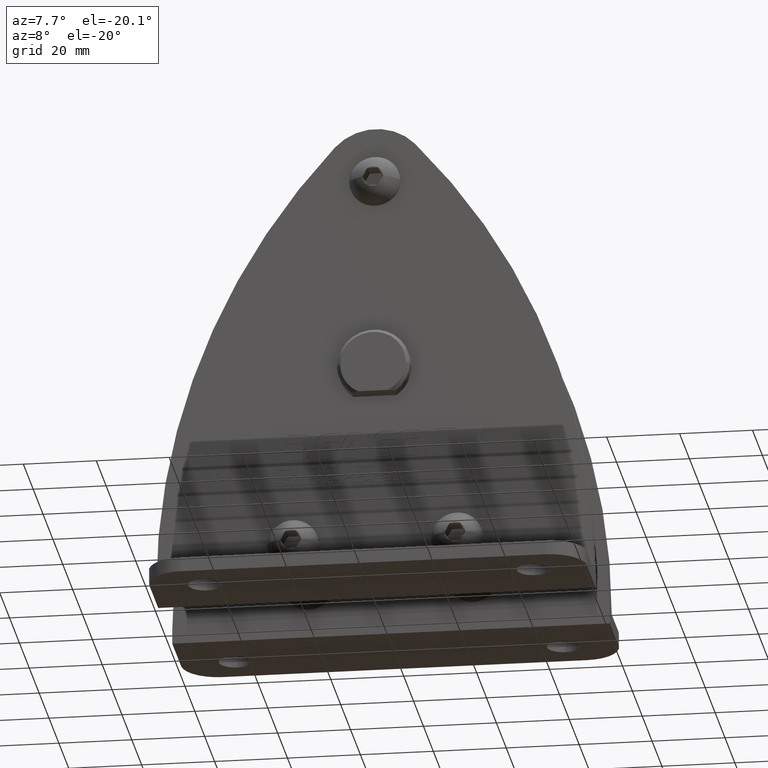
[diagram: clean part render]
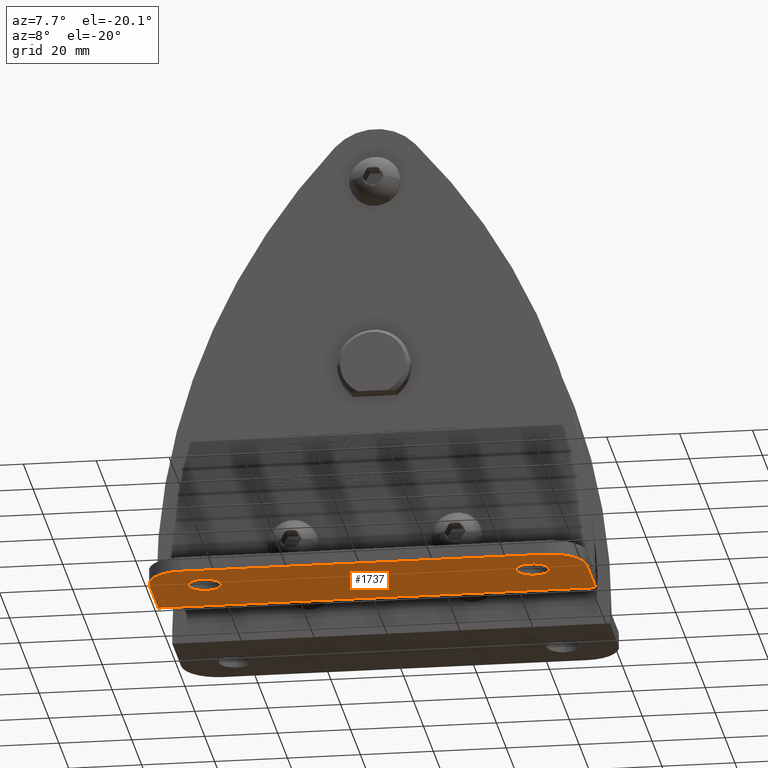
[diagram: same view with one face highlighted and labeled with its STEP entity id]
A machine part, auxiliary view. The second image highlights one B-rep face of the part: STEP entity #1737.
In plain terms, the highlighted planar face has unit normal (0, 0, -1).
Its self-contained STEP definition (entity closure, byte-faithful):
#1737=ADVANCED_FACE('',(#3653,#3654,#3655),#3656,.T.);
#3653=FACE_BOUND('',#5723,.T.);
#3654=FACE_BOUND('',#5724,.T.);
#3655=FACE_OUTER_BOUND('',#5725,.T.);
#3656=PLANE('',#5726);
#5723=EDGE_LOOP('',(#11239,#11240));
#5724=EDGE_LOOP('',(#11241,#11242));
#5725=EDGE_LOOP('',(#11243,#11244,#11245,#11246,#11247,#11248,#11249,#11250));
#5726=AXIS2_PLACEMENT_3D('',#11251,#11252,#11253);
#11239=ORIENTED_EDGE('',*,*,#14387,.T.);
#11240=ORIENTED_EDGE('',*,*,#12517,.T.);
#11241=ORIENTED_EDGE('',*,*,#14390,.T.);
#11242=ORIENTED_EDGE('',*,*,#12512,.T.);
#11243=ORIENTED_EDGE('',*,*,#14422,.T.);
#11244=ORIENTED_EDGE('',*,*,#14404,.T.);
#11245=ORIENTED_EDGE('',*,*,#14409,.F.);
#11246=ORIENTED_EDGE('',*,*,#14412,.T.);
#11247=ORIENTED_EDGE('',*,*,#14395,.F.);
#11248=ORIENTED_EDGE('',*,*,#14400,.T.);
#11249=ORIENTED_EDGE('',*,*,#14425,.F.);
#11250=ORIENTED_EDGE('',*,*,#14426,.T.);
#11251=CARTESIAN_POINT('',(0.0,-14.25,-65.0));
#11252=DIRECTION('',(0.0,0.0,-1.0));
#11253=DIRECTION('',(1.0,0.0,0.0));
#12512=EDGE_CURVE('',#15080,#15077,#15081,.T.);
#12517=EDGE_CURVE('',#15089,#15086,#15090,.T.);
#14387=EDGE_CURVE('',#15086,#15089,#17857,.T.);
#14390=EDGE_CURVE('',#15077,#15080,#17860,.T.);
#14395=EDGE_CURVE('',#17866,#17868,#17869,.T.);
#14400=EDGE_CURVE('',#17866,#17873,#17875,.T.);
#14404=EDGE_CURVE('',#17881,#17879,#17882,.T.);
#14409=EDGE_CURVE('',#17887,#17879,#17889,.T.);
#14412=EDGE_CURVE('',#17887,#17868,#17892,.T.);
#14422=EDGE_CURVE('',#17905,#17881,#17906,.T.);
#14425=EDGE_CURVE('',#17909,#17873,#17910,.T.);
#14426=EDGE_CURVE('',#17909,#17905,#17911,.T.);
#15077=VERTEX_POINT('',#19593);
#15080=VERTEX_POINT('',#19597);
#15081=CIRCLE('',#19598,4.5);
#15086=VERTEX_POINT('',#19604);
#15089=VERTEX_POINT('',#19608);
#15090=CIRCLE('',#19609,4.5);
#17857=CIRCLE('',#25749,4.5);
#17860=CIRCLE('',#25752,4.5);
#17866=VERTEX_POINT('',#25758);
#17868=VERTEX_POINT('',#25761);
#17869=CIRCLE('',#25762,9.99999998930002);
#17873=VERTEX_POINT('',#25768);
#17875=LINE('',#25771,#25772);
#17879=VERTEX_POINT('',#25777);
#17881=VERTEX_POINT('',#25780);
#17882=LINE('',#25781,#25782);
#17887=VERTEX_POINT('',#25788);
#17889=CIRCLE('',#25791,9.99999998930002);
#17892=LINE('',#25795,#25796);
#17905=VERTEX_POINT('',#25812);
#17906=LINE('',#25813,#25814);
#17909=VERTEX_POINT('',#25818);
#17910=LINE('',#25819,#25820);
#17911=LINE('',#25821,#25822);
#19593=CARTESIAN_POINT('',(-45.0,-35.25,-65.0));
#19597=CARTESIAN_POINT('',(-45.0,-26.25,-65.0));
#19598=AXIS2_PLACEMENT_3D('',#26714,#26715,#26716);
#19604=CARTESIAN_POINT('',(45.0,-35.25,-65.0));
#19608=CARTESIAN_POINT('',(45.0,-26.25,-65.0));
#19609=AXIS2_PLACEMENT_3D('',#26722,#26723,#26724);
#25749=AXIS2_PLACEMENT_3D('',#28818,#28819,#28820);
#25752=AXIS2_PLACEMENT_3D('',#28824,#28825,#28826);
#25758=CARTESIAN_POINT('',(-60.00001854,-32.2500000000011,-65.0));
#25761=CARTESIAN_POINT('',(-50.00001854,-42.25,-65.0));
#25762=AXIS2_PLACEMENT_3D('',#28831,#28832,#28833);
#25768=CARTESIAN_POINT('',(-60.00000927,-18.25,-65.0));
#25771=CARTESIAN_POINT('',(-60.00001854,-32.25,-65.0));
#25772=VECTOR('',#28837,1.0);
#25777=CARTESIAN_POINT('',(60.00001854,-32.25,-65.0));
#25780=CARTESIAN_POINT('',(60.00000927,-18.25,-65.0));
#25781=CARTESIAN_POINT('',(60.00001854,-18.25,-65.0));
#25782=VECTOR('',#28840,1.0);
#25788=CARTESIAN_POINT('',(50.00001854,-42.25,-65.0));
#25791=AXIS2_PLACEMENT_3D('',#28846,#28847,#28848);
#25795=CARTESIAN_POINT('',(50.00001854,-42.25,-65.0));
#25796=VECTOR('',#28850,1.0);
#25812=CARTESIAN_POINT('',(60.0,-14.25,-65.0));
#25813=CARTESIAN_POINT('',(60.0,-14.25,-65.0));
#25814=VECTOR('',#28860,1.0);
#25818=CARTESIAN_POINT('',(-60.0,-14.25,-65.0));
#25819=CARTESIAN_POINT('',(-60.0,-14.25,-65.0));
#25820=VECTOR('',#28862,1.0);
#25821=CARTESIAN_POINT('',(-60.0,-14.25,-65.0));
#25822=VECTOR('',#28863,1.0);
#26714=CARTESIAN_POINT('',(-45.0,-30.75,-65.0));
#26715=DIRECTION('',(-0.0,0.0,1.0));
#26716=DIRECTION('',(0.0,-1.0,0.0));
#26722=CARTESIAN_POINT('',(45.0,-30.75,-65.0));
#26723=DIRECTION('',(-0.0,0.0,1.0));
#26724=DIRECTION('',(0.0,-1.0,0.0));
#28818=CARTESIAN_POINT('',(45.0,-30.75,-65.0));
#28819=DIRECTION('',(-0.0,0.0,1.0));
#28820=DIRECTION('',(0.0,-1.0,0.0));
#28824=CARTESIAN_POINT('',(-45.0,-30.75,-65.0));
#28825=DIRECTION('',(-0.0,0.0,1.0));
#28826=DIRECTION('',(0.0,-1.0,0.0));
#28831=CARTESIAN_POINT('',(-50.0000185507,-32.2500000107,-65.0));
#28832=DIRECTION('',(0.0,0.0,1.0));
#28833=DIRECTION('',(-1.0,1.06988462648241E-009,0.0));
#28837=DIRECTION('',(0.0,1.0,0.0));
#28840=DIRECTION('',(0.0,-1.0,0.0));
#28846=CARTESIAN_POINT('',(50.0000185507,-32.2500000107,-65.0));
#28847=DIRECTION('',(0.0,0.0,1.0));
#28848=DIRECTION('',(-1.06988551466083E-009,-1.0,0.0));
#28850=DIRECTION('',(-1.0,0.0,0.0));
#28860=DIRECTION('',(0.0,-1.0,0.0));
#28862=DIRECTION('',(0.0,-1.0,0.0));
#28863=DIRECTION('',(1.0,0.0,0.0));